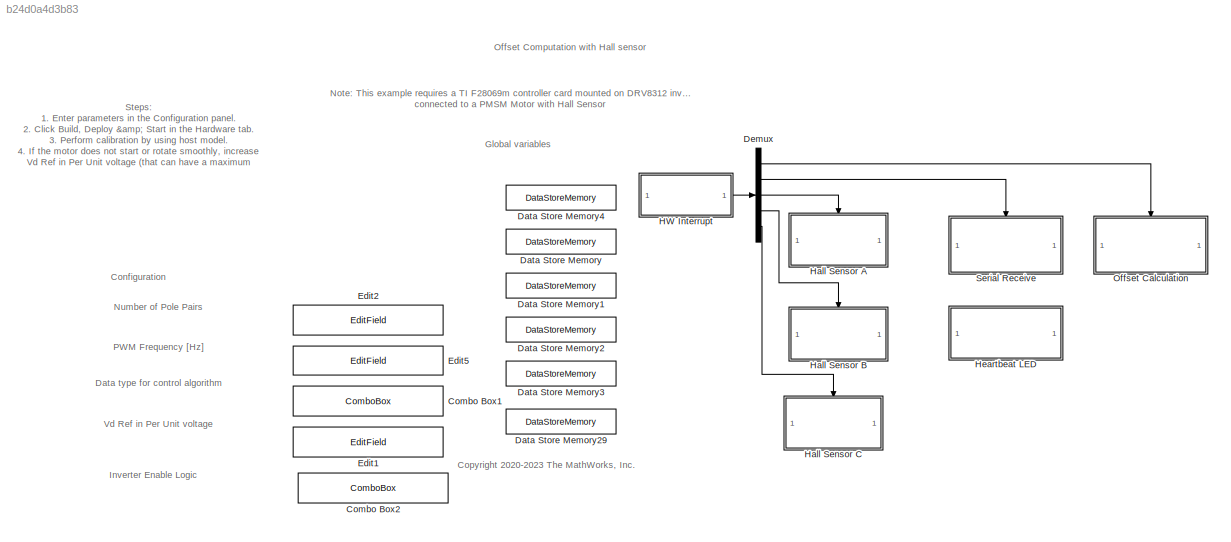
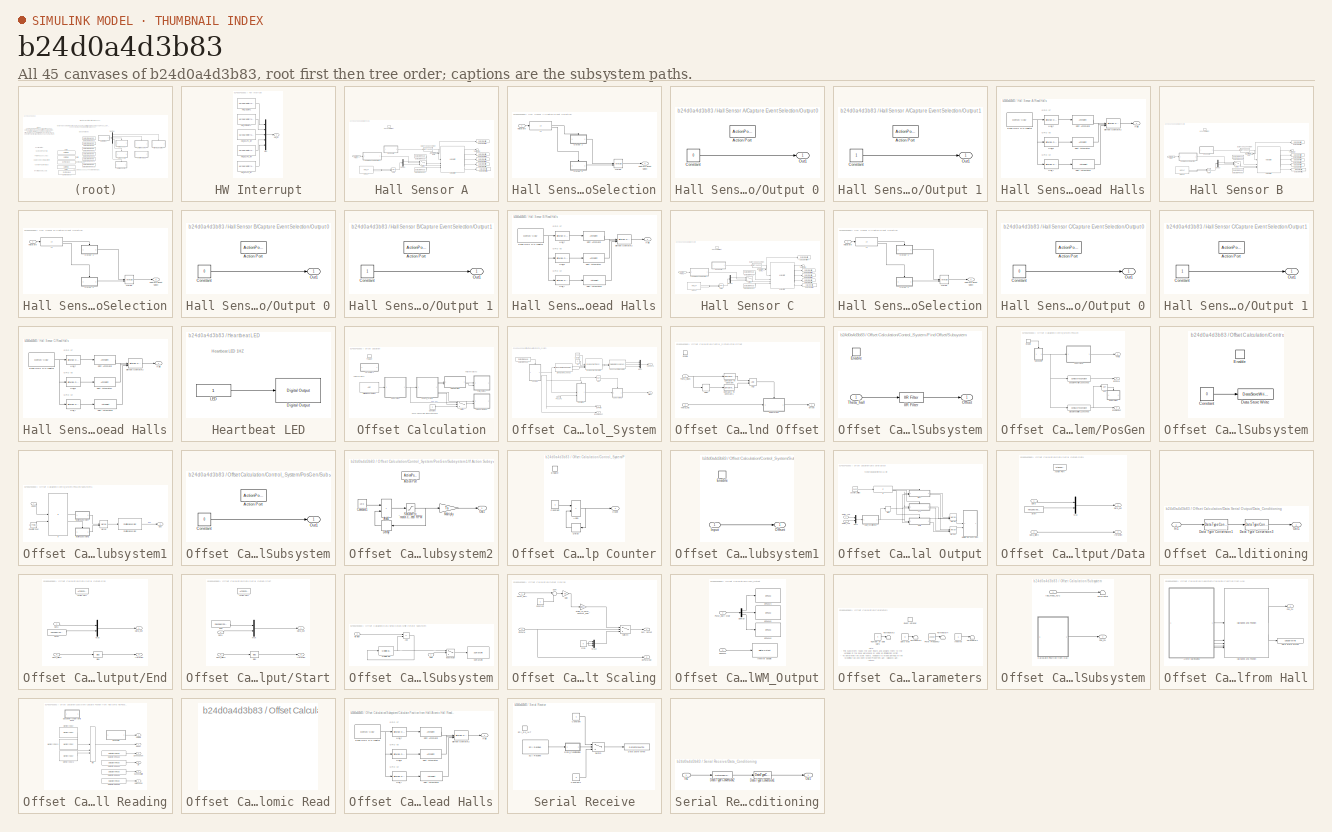
[diagram: thumbnail index - all 45 canvases of the model, root first then tree order]
MODEL slx_b24d0a4d3b83
KIND model
CONFIG AbsTol = auto
CONFIG EnableMultiTasking = on
CONFIG FixedStep = auto
CONFIG InitFcn = mcb_pmsm_offset_data;\ntarget = mcb_SetProcessorDetails('F28069M',PWM_frequency);\n\ninverter.EnableLogic = eval(get_param([bdroot '/Offset Calculation/Parameters/Inverter'],'Value'));
CONFIG MaxStep = auto
CONFIG MinStep = auto
CONFIG RelTol = 1e-3
CONFIG SampleTimeConstraint = Unconstrained
CONFIG SolverName = FixedStepDiscrete
CONFIG StartTime = 0.0
CONFIG StopTime = 2
BLOCK [ComboBox] Combo Box1
  LabelPosition = Hide
  SelectedLabel = single
BLOCK [ComboBox] Combo Box2
  LabelPosition = Hide
  SelectedLabel = Active High
BLOCK [DataStoreMemory] Data Store Memory
  DataStoreName = HallStateChangeFlag
  ShowAdditionalParam = off
BLOCK [DataStoreMemory] Data Store Memory1
  DataStoreName = GlobalSpeedCount
  ShowAdditionalParam = off
BLOCK [DataStoreMemory] Data Store Memory2
  DataStoreName = GlobalSpeedValidity
  ShowAdditionalParam = off
BLOCK [DataStoreMemory] Data Store Memory29
  DataStoreName = Enable
  OutDataTypeStr = boolean
  ReadBeforeWriteMsg = warning
  ShowAdditionalParam = off
  WriteAfterReadMsg = warning
  WriteAfterWriteMsg = warning
BLOCK [DataStoreMemory] Data Store Memory3
  DataStoreName = GlobalDirection
  ShowAdditionalParam = off
BLOCK [DataStoreMemory] Data Store Memory4
  DataStoreName = GlobalHallState
  OutDataTypeStr = uint32
  ShowAdditionalParam = off
BLOCK [Demux] Demux
  Outputs = 5
BLOCK [EditField] Edit1
  Alignment = Center
  LabelPosition = Hide
  ShowInitialText = on
BLOCK [EditField] Edit2
  Alignment = Center
  LabelPosition = Hide
  ShowInitialText = on
BLOCK [EditField] Edit5
  Alignment = Center
  LabelPosition = Hide
  ShowInitialText = on
BLOCK [SubSystem] HW Interrupt
BLOCK [Reference] HW Interrupt/HWI_ADCINT1  REF=svdschedulerlib/Hardware Interrupt v2
  LibrarySourceBlock = c2000lib/Scheduling/Hardware Interrupt
  SourceBlock = svdschedulerlib/Hardware Interrupt v2
  SourceType = HardwareInterrupt
  UserDataPersistent = on
BLOCK [Reference] HW Interrupt/HWI_ECAP1_INT  REF=svdschedulerlib/Hardware Interrupt v2
  LibrarySourceBlock = c2000lib/Scheduling/Hardware Interrupt
  SourceBlock = svdschedulerlib/Hardware Interrupt v2
  SourceType = HardwareInterrupt
  UserDataPersistent = on
BLOCK [Reference] HW Interrupt/HWI_ECAP2_INT  REF=svdschedulerlib/Hardware Interrupt v2
  LibrarySourceBlock = c2000lib/Scheduling/Hardware Interrupt
  SourceBlock = svdschedulerlib/Hardware Interrupt v2
  SourceType = HardwareInterrupt
  UserDataPersistent = on
BLOCK [Reference] HW Interrupt/HWI_ECAP3_INT  REF=svdschedulerlib/Hardware Interrupt v2
  LibrarySourceBlock = c2000lib/Scheduling/Hardware Interrupt
  SourceBlock = svdschedulerlib/Hardware Interrupt v2
  SourceType = HardwareInterrupt
  UserDataPersistent = on
BLOCK [Reference] HW Interrupt/HWI_SCIRXINTA  REF=svdschedulerlib/Hardware Interrupt v2
  LibrarySourceBlock = c2000lib/Scheduling/Hardware Interrupt
  SourceBlock = svdschedulerlib/Hardware Interrupt v2
  SourceType = HardwareInterrupt
  UserDataPersistent = on
BLOCK [Outport] HW Interrupt/HW_Int
BLOCK [Mux] HW Interrupt/Mux
  DisplayOption = bar
  Inputs = 5
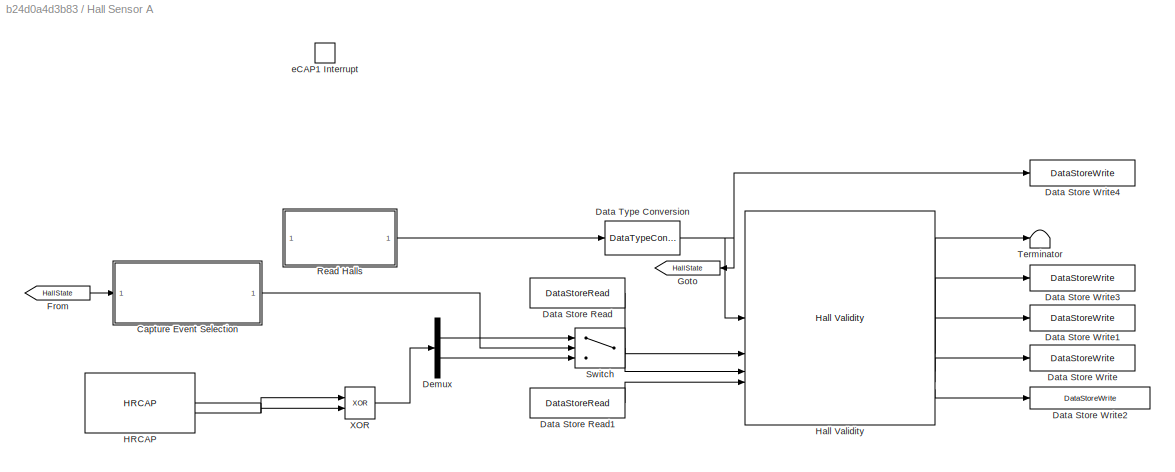
BLOCK [SubSystem] Hall Sensor A
BLOCK [SubSystem] Hall Sensor A/Capture Event Selection
BLOCK [Outport] Hall Sensor A/Capture Event Selection/Capture Event Select
BLOCK [Inport] Hall Sensor A/Capture Event Selection/Hall State
BLOCK [If] Hall Sensor A/Capture Event Selection/If
  IfExpression = (u1 == 5 | u1 == 3)
BLOCK [Merge] Hall Sensor A/Capture Event Selection/Merge
BLOCK [SubSystem] Hall Sensor A/Capture Event Selection/Output 0
  TreatAsAtomicUnit = on
BLOCK [ActionPort] Hall Sensor A/Capture Event Selection/Output 0/Action Port
  ActionPortLabel = else
BLOCK [Constant] Hall Sensor A/Capture Event Selection/Output 0/Constant
  OutDataTypeStr = boolean
  Value = 0
BLOCK [Outport] Hall Sensor A/Capture Event Selection/Output 0/Out1
BLOCK [SubSystem] Hall Sensor A/Capture Event Selection/Output 1
  TreatAsAtomicUnit = on
BLOCK [ActionPort] Hall Sensor A/Capture Event Selection/Output 1/Action Port
  ActionPortLabel = if((u1 == 5 | u1 == 3))
BLOCK [Constant] Hall Sensor A/Capture Event Selection/Output 1/Constant
  OutDataTypeStr = boolean
BLOCK [Outport] Hall Sensor A/Capture Event Selection/Output 1/Out1
BLOCK [DataStoreRead] Hall Sensor A/Data Store Read
  DataStoreName = GlobalHallState
  IndexOptions = Index vector (dialog)
  Indices = 1
  OutputSizes = 1
BLOCK [DataStoreRead] Hall Sensor A/Data Store Read1
  DataStoreName = GlobalDirection
  IndexOptions = Index vector (dialog)
  Indices = 1
  OutputSizes = 1
BLOCK [DataStoreWrite] Hall Sensor A/Data Store Write
  DataStoreName = GlobalSpeedValidity
  IndexOptions = Index vector (dialog)
  Indices = 1
  OutputSizes = 1
BLOCK [DataStoreWrite] Hall Sensor A/Data Store Write1
  DataStoreName = GlobalDirection
  IndexOptions = Index vector (dialog)
  Indices = 1
  OutputSizes = 1
BLOCK [DataStoreWrite] Hall Sensor A/Data Store Write2
  DataStoreName = HallStateChangeFlag
  IndexOptions = Index vector (dialog)
  Indices = 1
  OutputSizes = 1
BLOCK [DataStoreWrite] Hall Sensor A/Data Store Write3
  DataStoreName = GlobalSpeedCount
  IndexOptions = Index vector (dialog)
  Indices = 1
  OutputSizes = 1
BLOCK [DataStoreWrite] Hall Sensor A/Data Store Write4
  DataStoreName = GlobalHallState
  IndexOptions = Index vector (dialog)
  Indices = 1
  OutputSizes = 1
BLOCK [DataTypeConversion] Hall Sensor A/Data Type Conversion
  ConvertRealWorld = Stored Integer (SI)
  OutDataTypeStr = uint32
  RndMeth = Floor
  SaturateOnIntegerOverflow = off
BLOCK [Demux] Hall Sensor A/Demux
  Outputs = 2
BLOCK [From] Hall Sensor A/From
  GotoTag = HallState
BLOCK [Goto] Hall Sensor A/Goto
  GotoTag = HallState
BLOCK [Reference] Hall Sensor A/HRCAP  REF=c2803xlib/HRCAP
  SourceBlock = c2803xlib/HRCAP
  SourceType = codertarget.tic2000.blocks.HRCAPBlock
BLOCK [Reference] Hall Sensor A/Hall Validity  REF=mcbpositiondecoderlib/Hall Validity
  SourceBlock = mcbpositiondecoderlib/Hall Validity
  SourceType = Hall Validity
BLOCK [SubSystem] Hall Sensor A/Read Halls
BLOCK [Reference] Hall Sensor A/Read Halls/Bitwise Operator2  REF=simulink/Logic and Bit
Operations/Bitwise
Operator
  SourceBlock = simulink/Logic and Bit\nOperations/Bitwise\nOperator
  SourceType = Bitwise Operator
BLOCK [Reference] Hall Sensor A/Read Halls/Hall_A  REF=simulink/Logic and Bit
Operations/Bitwise
Operator
  SourceBlock = simulink/Logic and Bit\nOperations/Bitwise\nOperator
  SourceType = Bitwise Operator
BLOCK [Reference] Hall Sensor A/Read Halls/Hall_B  REF=simulink/Logic and Bit
Operations/Bitwise
Operator
  SourceBlock = simulink/Logic and Bit\nOperations/Bitwise\nOperator
  SourceType = Bitwise Operator
BLOCK [Reference] Hall Sensor A/Read Halls/Hall_C  REF=simulink/Logic and Bit
Operations/Bitwise
Operator
  SourceBlock = simulink/Logic and Bit\nOperations/Bitwise\nOperator
  SourceType = Bitwise Operator
BLOCK [Outport] Hall Sensor A/Read Halls/Halls
BLOCK [Reference] Hall Sensor A/Read Halls/Read GPIO DAT register  REF=idelinklib_common/Memory Copy
  SourceBlock = idelinklib_common/Memory Copy
  SourceType = Memory Copy
BLOCK [ArithShift] Hall Sensor A/Read Halls/Shift Arithmetic
  BitShiftNumber = 23
  InputPortMap = u0
BLOCK [ArithShift] Hall Sensor A/Read Halls/Shift Arithmetic1
  BitShiftNumber = 22
  InputPortMap = u0
BLOCK [ArithShift] Hall Sensor A/Read Halls/Shift Arithmetic2
  BitShiftNumber = 22
  InputPortMap = u0
BLOCK [Switch] Hall Sensor A/Switch
  Criteria = u2 ~= 0
  InputSameDT = off
  SaturateOnIntegerOverflow = off
BLOCK [Terminator] Hall Sensor A/Terminator
BLOCK [Logic] Hall Sensor A/XOR
  AllPortsSameDT = off
  IconShape = distinctive
  Operator = XOR
  OutDataTypeStr = boolean
BLOCK [TriggerPort] Hall Sensor A/eCAP1 Interrupt
  StatesWhenEnabling = held
  TriggerType = function-call
  VariantControl = Variant
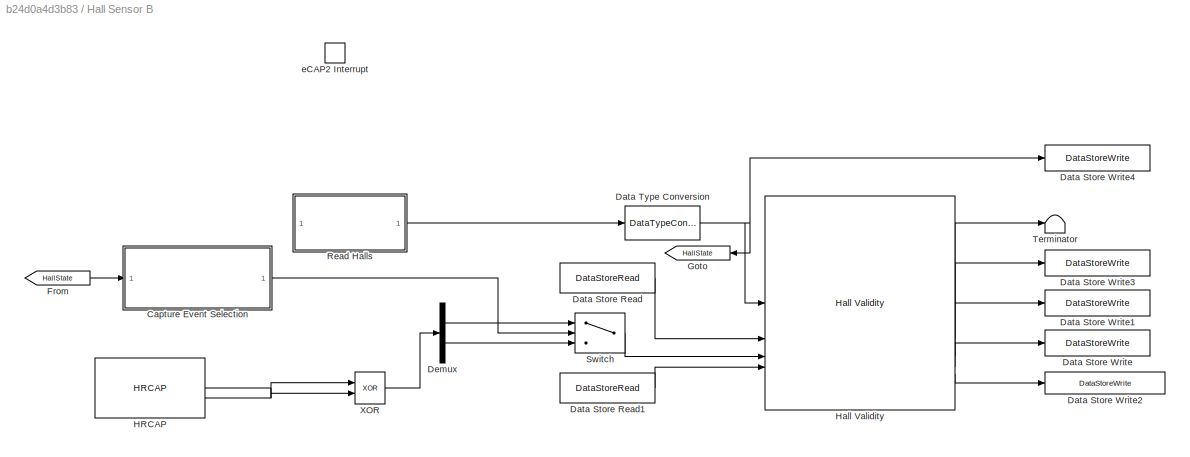
BLOCK [SubSystem] Hall Sensor B
BLOCK [SubSystem] Hall Sensor B/Capture Event Selection
BLOCK [Outport] Hall Sensor B/Capture Event Selection/Capture Event Select
BLOCK [Inport] Hall Sensor B/Capture Event Selection/Hall State
BLOCK [If] Hall Sensor B/Capture Event Selection/If
  IfExpression = (u1 == 6 | u1 == 3)
BLOCK [Merge] Hall Sensor B/Capture Event Selection/Merge
BLOCK [SubSystem] Hall Sensor B/Capture Event Selection/Output 0
  TreatAsAtomicUnit = on
BLOCK [ActionPort] Hall Sensor B/Capture Event Selection/Output 0/Action Port
  ActionPortLabel = else
BLOCK [Constant] Hall Sensor B/Capture Event Selection/Output 0/Constant
  OutDataTypeStr = boolean
  Value = 0
BLOCK [Outport] Hall Sensor B/Capture Event Selection/Output 0/Out1
BLOCK [SubSystem] Hall Sensor B/Capture Event Selection/Output 1
  TreatAsAtomicUnit = on
BLOCK [ActionPort] Hall Sensor B/Capture Event Selection/Output 1/Action Port
  ActionPortLabel = if((u1 == 6 | u1 == 3))
BLOCK [Constant] Hall Sensor B/Capture Event Selection/Output 1/Constant
  OutDataTypeStr = boolean
BLOCK [Outport] Hall Sensor B/Capture Event Selection/Output 1/Out1
BLOCK [DataStoreRead] Hall Sensor B/Data Store Read
  DataStoreName = GlobalHallState
  IndexOptions = Index vector (dialog)
  Indices = 1
  OutputSizes = 1
BLOCK [DataStoreRead] Hall Sensor B/Data Store Read1
  DataStoreName = GlobalDirection
  IndexOptions = Index vector (dialog)
  Indices = 1
  OutputSizes = 1
BLOCK [DataStoreWrite] Hall Sensor B/Data Store Write
  DataStoreName = GlobalSpeedValidity
  IndexOptions = Index vector (dialog)
  Indices = 1
  OutputSizes = 1
BLOCK [DataStoreWrite] Hall Sensor B/Data Store Write1
  DataStoreName = GlobalDirection
  IndexOptions = Index vector (dialog)
  Indices = 1
  OutputSizes = 1
BLOCK [DataStoreWrite] Hall Sensor B/Data Store Write2
  DataStoreName = HallStateChangeFlag
  IndexOptions = Index vector (dialog)
  Indices = 1
  OutputSizes = 1
BLOCK [DataStoreWrite] Hall Sensor B/Data Store Write3
  DataStoreName = GlobalSpeedCount
  IndexOptions = Index vector (dialog)
  Indices = 1
  OutputSizes = 1
BLOCK [DataStoreWrite] Hall Sensor B/Data Store Write4
  DataStoreName = GlobalHallState
  IndexOptions = Index vector (dialog)
  Indices = 1
  OutputSizes = 1
BLOCK [DataTypeConversion] Hall Sensor B/Data Type Conversion
  ConvertRealWorld = Stored Integer (SI)
  OutDataTypeStr = uint32
  RndMeth = Floor
  SaturateOnIntegerOverflow = off
BLOCK [Demux] Hall Sensor B/Demux
  Outputs = 2
BLOCK [From] Hall Sensor B/From
  GotoTag = HallState
BLOCK [Goto] Hall Sensor B/Goto
  GotoTag = HallState
BLOCK [Reference] Hall Sensor B/HRCAP  REF=c2803xlib/HRCAP
  SourceBlock = c2803xlib/HRCAP
  SourceType = codertarget.tic2000.blocks.HRCAPBlock
BLOCK [Reference] Hall Sensor B/Hall Validity  REF=mcbpositiondecoderlib/Hall Validity
  SourceBlock = mcbpositiondecoderlib/Hall Validity
  SourceType = Hall Validity
BLOCK [SubSystem] Hall Sensor B/Read Halls
BLOCK [Reference] Hall Sensor B/Read Halls/Bitwise Operator2  REF=simulink/Logic and Bit
Operations/Bitwise
Operator
  SourceBlock = simulink/Logic and Bit\nOperations/Bitwise\nOperator
  SourceType = Bitwise Operator
BLOCK [Reference] Hall Sensor B/Read Halls/Hall_A  REF=simulink/Logic and Bit
Operations/Bitwise
Operator
  SourceBlock = simulink/Logic and Bit\nOperations/Bitwise\nOperator
  SourceType = Bitwise Operator
BLOCK [Reference] Hall Sensor B/Read Halls/Hall_B  REF=simulink/Logic and Bit
Operations/Bitwise
Operator
  SourceBlock = simulink/Logic and Bit\nOperations/Bitwise\nOperator
  SourceType = Bitwise Operator
BLOCK [Reference] Hall Sensor B/Read Halls/Hall_C  REF=simulink/Logic and Bit
Operations/Bitwise
Operator
  SourceBlock = simulink/Logic and Bit\nOperations/Bitwise\nOperator
  SourceType = Bitwise Operator
BLOCK [Outport] Hall Sensor B/Read Halls/Halls
BLOCK [Reference] Hall Sensor B/Read Halls/Read GPIO DAT register  REF=idelinklib_common/Memory Copy
  SourceBlock = idelinklib_common/Memory Copy
  SourceType = Memory Copy
BLOCK [ArithShift] Hall Sensor B/Read Halls/Shift Arithmetic
  BitShiftNumber = 23
  InputPortMap = u0
BLOCK [ArithShift] Hall Sensor B/Read Halls/Shift Arithmetic1
  BitShiftNumber = 22
  InputPortMap = u0
BLOCK [ArithShift] Hall Sensor B/Read Halls/Shift Arithmetic2
  BitShiftNumber = 22
  InputPortMap = u0
BLOCK [Switch] Hall Sensor B/Switch
  Criteria = u2 ~= 0
  InputSameDT = off
  SaturateOnIntegerOverflow = off
  Threshold = 3
BLOCK [Terminator] Hall Sensor B/Terminator
BLOCK [Logic] Hall Sensor B/XOR
  AllPortsSameDT = off
  IconShape = distinctive
  Operator = XOR
  OutDataTypeStr = boolean
BLOCK [TriggerPort] Hall Sensor B/eCAP2 Interrupt
  StatesWhenEnabling = held
  TriggerType = function-call
  VariantControl = Variant
BLOCK [SubSystem] Hall Sensor C
BLOCK [SubSystem] Hall Sensor C/Capture Event Selection
BLOCK [Outport] Hall Sensor C/Capture Event Selection/Capture Event Select
BLOCK [Inport] Hall Sensor C/Capture Event Selection/Hall State
BLOCK [If] Hall Sensor C/Capture Event Selection/If
  IfExpression = (u1 == 6 | u1 == 5)
BLOCK [Merge] Hall Sensor C/Capture Event Selection/Merge
BLOCK [SubSystem] Hall Sensor C/Capture Event Selection/Output 0
  TreatAsAtomicUnit = on
BLOCK [ActionPort] Hall Sensor C/Capture Event Selection/Output 0/Action Port
  ActionPortLabel = else
BLOCK [Constant] Hall Sensor C/Capture Event Selection/Output 0/Constant
  OutDataTypeStr = boolean
  Value = 0
BLOCK [Outport] Hall Sensor C/Capture Event Selection/Output 0/Out1
BLOCK [SubSystem] Hall Sensor C/Capture Event Selection/Output 1
  TreatAsAtomicUnit = on
BLOCK [ActionPort] Hall Sensor C/Capture Event Selection/Output 1/Action Port
  ActionPortLabel = if((u1 == 6 | u1 == 5))
BLOCK [Constant] Hall Sensor C/Capture Event Selection/Output 1/Constant
  OutDataTypeStr = boolean
BLOCK [Outport] Hall Sensor C/Capture Event Selection/Output 1/Out1
BLOCK [DataStoreRead] Hall Sensor C/Data Store Read
  DataStoreName = GlobalHallState
  IndexOptions = Index vector (dialog)
  Indices = 1
  OutputSizes = 1
BLOCK [DataStoreRead] Hall Sensor C/Data Store Read1
  DataStoreName = GlobalDirection
  IndexOptions = Index vector (dialog)
  Indices = 1
  OutputSizes = 1
BLOCK [DataStoreWrite] Hall Sensor C/Data Store Write
  DataStoreName = GlobalSpeedValidity
  IndexOptions = Index vector (dialog)
  Indices = 1
  OutputSizes = 1
BLOCK [DataStoreWrite] Hall Sensor C/Data Store Write1
  DataStoreName = GlobalDirection
  IndexOptions = Index vector (dialog)
  Indices = 1
  OutputSizes = 1
BLOCK [DataStoreWrite] Hall Sensor C/Data Store Write2
  DataStoreName = HallStateChangeFlag
  IndexOptions = Index vector (dialog)
  Indices = 1
  OutputSizes = 1
BLOCK [DataStoreWrite] Hall Sensor C/Data Store Write3
  DataStoreName = GlobalSpeedCount
  IndexOptions = Index vector (dialog)
  Indices = 1
  OutputSizes = 1
BLOCK [DataStoreWrite] Hall Sensor C/Data Store Write4
  DataStoreName = GlobalHallState
  IndexOptions = Index vector (dialog)
  Indices = 1
  OutputSizes = 1
BLOCK [DataTypeConversion] Hall Sensor C/Data Type Conversion
  ConvertRealWorld = Stored Integer (SI)
  OutDataTypeStr = uint32
  RndMeth = Floor
  SaturateOnIntegerOverflow = off
BLOCK [Demux] Hall Sensor C/Demux
  Outputs = 2
BLOCK [From] Hall Sensor C/From1
  GotoTag = HallState
BLOCK [Goto] Hall Sensor C/Goto1
  GotoTag = HallState
BLOCK [Reference] Hall Sensor C/HRCAP  REF=c2803xlib/HRCAP
  SourceBlock = c2803xlib/HRCAP
  SourceType = codertarget.tic2000.blocks.HRCAPBlock
BLOCK [Reference] Hall Sensor C/Hall Validity  REF=mcbpositiondecoderlib/Hall Validity
  SourceBlock = mcbpositiondecoderlib/Hall Validity
  SourceType = Hall Validity
BLOCK [SubSystem] Hall Sensor C/Read Halls
BLOCK [Reference] Hall Sensor C/Read Halls/Bitwise Operator2  REF=simulink/Logic and Bit
Operations/Bitwise
Operator
  SourceBlock = simulink/Logic and Bit\nOperations/Bitwise\nOperator
  SourceType = Bitwise Operator
BLOCK [Reference] Hall Sensor C/Read Halls/Hall_A  REF=simulink/Logic and Bit
Operations/Bitwise
Operator
  SourceBlock = simulink/Logic and Bit\nOperations/Bitwise\nOperator
  SourceType = Bitwise Operator
BLOCK [Reference] Hall Sensor C/Read Halls/Hall_B  REF=simulink/Logic and Bit
Operations/Bitwise
Operator
  SourceBlock = simulink/Logic and Bit\nOperations/Bitwise\nOperator
  SourceType = Bitwise Operator
BLOCK [Reference] Hall Sensor C/Read Halls/Hall_C  REF=simulink/Logic and Bit
Operations/Bitwise
Operator
  SourceBlock = simulink/Logic and Bit\nOperations/Bitwise\nOperator
  SourceType = Bitwise Operator
BLOCK [Outport] Hall Sensor C/Read Halls/Halls
BLOCK [Reference] Hall Sensor C/Read Halls/Read GPIO DAT register  REF=idelinklib_common/Memory Copy
  SourceBlock = idelinklib_common/Memory Copy
  SourceType = Memory Copy
BLOCK [ArithShift] Hall Sensor C/Read Halls/Shift Arithmetic
  BitShiftNumber = 23
  InputPortMap = u0
BLOCK [ArithShift] Hall Sensor C/Read Halls/Shift Arithmetic1
  BitShiftNumber = 22
  InputPortMap = u0
BLOCK [ArithShift] Hall Sensor C/Read Halls/Shift Arithmetic2
  BitShiftNumber = 22
  InputPortMap = u0
BLOCK [Switch] Hall Sensor C/Switch
  Criteria = u2 ~= 0
  InputSameDT = off
  SaturateOnIntegerOverflow = off
  Threshold = 3
BLOCK [Terminator] Hall Sensor C/Terminator
BLOCK [Logic] Hall Sensor C/XOR
  AllPortsSameDT = off
  IconShape = distinctive
  Operator = XOR
  OutDataTypeStr = boolean
BLOCK [TriggerPort] Hall Sensor C/eCAP3 Interrupt
  StatesWhenEnabling = held
  TriggerType = function-call
  VariantControl = Variant
BLOCK [SubSystem] Heartbeat LED
  TreatAsAtomicUnit = on
BLOCK [Reference] Heartbeat LED/Digital Output  REF=c2806xlib/Digital Output
  SourceBlock = c2806xlib/Digital Output
  SourceType = C2806x GPIO Digital Output
  UserDataPersistent = on
BLOCK [Constant] Heartbeat LED/LED
  OutDataTypeStr = uint16
  SampleTime = 0.5
BLOCK [SubSystem] Offset Calculation
  RTWMemSecFuncExecute = code_ramfuncs
BLOCK [Constant] Offset Calculation/Constant
  OutDataTypeStr = dataType
  Value = -1
BLOCK [SubSystem] Offset Calculation/Control_System
BLOCK [DataStoreRead] Offset Calculation/Control_System/Data Store Read
  DataStoreName = Enable
  IndexOptions = Index vector (dialog)
  Indices = 1
  OutputSizes = 1
BLOCK [Outport] Offset Calculation/Control_System/EnPWM
  Port = 2
  VectorParamsAs1DForOutWhenUnconnected = off
BLOCK [Outport] Offset Calculation/Control_System/EnableHost
  Port = 4
  VectorParamsAs1DForOutWhenUnconnected = off
BLOCK [SubSystem] Offset Calculation/Control_System/Find Offset
BLOCK [Logic] Offset Calculation/Control_System/Find Offset/AND
  AllPortsSameDT = off
  OutDataTypeStr = boolean
BLOCK [Reference] Offset Calculation/Control_System/Find Offset/Compare To Constant  REF=simulink/Logic and Bit
Operations/Compare
To Constant
  SourceBlock = simulink/Logic and Bit\nOperations/Compare\nTo Constant
  SourceType = Compare To Constant
BLOCK [Reference] Offset Calculation/Control_System/Find Offset/Compare To Constant1  REF=simulink/Logic and Bit
Operations/Compare
To Constant
  SourceBlock = simulink/Logic and Bit\nOperations/Compare\nTo Constant
  SourceType = Compare To Constant
BLOCK [Delay] Offset Calculation/Control_System/Find Offset/Delay
  DelayLength = 1
  InputPortMap = u0
BLOCK [EnablePort] Offset Calculation/Control_System/Find Offset/Enable
  StatesWhenEnabling = reset
BLOCK [Outport] Offset Calculation/Control_System/Find Offset/Offset
BLOCK [SubSystem] Offset Calculation/Control_System/Find Offset/Subsystem
BLOCK [EnablePort] Offset Calculation/Control_System/Find Offset/Subsystem/Enable
BLOCK [Reference] Offset Calculation/Control_System/Find Offset/Subsystem/IIR Filter  REF=mcbcontrolslib/IIR Filter
  SourceBlock = mcbcontrolslib/IIR Filter
  SourceType = IIR Filter
BLOCK [Outport] Offset Calculation/Control_System/Find Offset/Subsystem/Offset
BLOCK [Inport] Offset Calculation/Control_System/Find Offset/Subsystem/Theta_hall
BLOCK [Inport] Offset Calculation/Control_System/Find Offset/Theta_Open
BLOCK [Inport] Offset Calculation/Control_System/Find Offset/Theta_hall
  Port = 2
BLOCK [Reference] Offset Calculation/Control_System/Inverse Park Transform  REF=mcbcontrolslib/Inverse Park Transform
  SourceBlock = mcbcontrolslib/Inverse Park Transform
  SourceType = Inverse Park Transform
BLOCK [Mux] Offset Calculation/Control_System/Mux1
  DisplayOption = bar
  Inputs = 3
BLOCK [Logic] Offset Calculation/Control_System/NOT
  AllPortsSameDT = off
  IconShape = distinctive
  Operator = NOT
  OutDataTypeStr = boolean
BLOCK [Outport] Offset Calculation/Control_System/Offset
  Port = 3
  VectorParamsAs1DForOutWhenUnconnected = off
BLOCK [SubSystem] Offset Calculation/Control_System/PosGen
BLOCK [Reference] Offset Calculation/Control_System/PosGen/Disable host after 22 seconds  REF=simulink/Logic and Bit
Operations/Compare
To Constant
  SourceBlock = simulink/Logic and Bit\nOperations/Compare\nTo Constant
  SourceType = Compare To Constant
BLOCK [Outport] Offset Calculation/Control_System/PosGen/EnPWM
  InitialOutput = 0
  OutputWhenDisabled = reset
  Port = 2
  VectorParamsAs1DForOutWhenUnconnected = off
BLOCK [EnablePort] Offset Calculation/Control_System/PosGen/Enable
  ShowOutputPort = on
  StatesWhenEnabling = reset
BLOCK [Reference] Offset Calculation/Control_System/PosGen/Enable PWM for 20 seconds  REF=simulink/Logic and Bit
Operations/Compare
To Constant
  SourceBlock = simulink/Logic and Bit\nOperations/Compare\nTo Constant
  SourceType = Compare To Constant
BLOCK [Outport] Offset Calculation/Control_System/PosGen/EnableHost
  InitialOutput = 0
  OutputWhenDisabled = reset
  Port = 3
  VectorParamsAs1DForOutWhenUnconnected = off
BLOCK [Logic] Offset Calculation/Control_System/PosGen/NOT
  AllPortsSameDT = off
  IconShape = distinctive
  Operator = NOT
  OutDataTypeStr = boolean
BLOCK [SubSystem] Offset Calculation/Control_System/PosGen/Subsystem
BLOCK [Constant] Offset Calculation/Control_System/PosGen/Subsystem/Constant
  OutDataTypeStr = Inherit: Inherit via back propagation
  Value = 0
BLOCK [DataStoreWrite] Offset Calculation/Control_System/PosGen/Subsystem/Data Store Write
  DataStoreName = Enable
  IndexOptions = Index vector (dialog)
  Indices = 1
  OutputSizes = 1
BLOCK [EnablePort] Offset Calculation/Control_System/PosGen/Subsystem/Enable
BLOCK [SubSystem] Offset Calculation/Control_System/PosGen/Subsystem1
BLOCK [Inport] Offset Calculation/Control_System/PosGen/Subsystem1/Count
BLOCK [Constant] Offset Calculation/Control_System/PosGen/Subsystem1/Count for 2 sec
  OutDataTypeStr = uint32
  SampleTime = -1
  Value = 2.5 * PWM_frequency
BLOCK [Outport] Offset Calculation/Control_System/PosGen/Subsystem1/Eps
BLOCK [If] Offset Calculation/Control_System/PosGen/Subsystem1/If
  IfExpression = u1 < u2
  NumInputs = 2
BLOCK [SubSystem] Offset Calculation/Control_System/PosGen/Subsystem1/If Action Subsystem
  TreatAsAtomicUnit = on
BLOCK [ActionPort] Offset Calculation/Control_System/PosGen/Subsystem1/If Action Subsystem/Action Port
  ActionPortLabel = if(u1 < u2)
BLOCK [Constant] Offset Calculation/Control_System/PosGen/Subsystem1/If Action Subsystem/Constant
  OutDataTypeStr = dataType
  Value = 0
BLOCK [Outport] Offset Calculation/Control_System/PosGen/Subsystem1/If Action Subsystem/Out1
BLOCK [SubSystem] Offset Calculation/Control_System/PosGen/Subsystem1/If Action Subsystem2
  TreatAsAtomicUnit = on
BLOCK [ActionPort] Offset Calculation/Control_System/PosGen/Subsystem1/If Action Subsystem2/Action Port
  ActionPortLabel = else
BLOCK [Sum] Offset Calculation/Control_System/PosGen/Subsystem1/If Action Subsystem2/Add1
  IconShape = rectangular
BLOCK [Constant] Offset Calculation/Control_System/PosGen/Subsystem1/If Action Subsystem2/Constant1
  OutDataTypeStr = dataType
  Value = 1e-3
BLOCK [Delay] Offset Calculation/Control_System/PosGen/Subsystem1/If Action Subsystem2/Delay
  DelayLength = 1
  InputPortMap = u0
BLOCK [Gain] Offset Calculation/Control_System/PosGen/Subsystem1/If Action Subsystem2/Multiply
  Gain = Ts
  OutDataTypeStr = Inherit: Same as input
BLOCK [Outport] Offset Calculation/Control_System/PosGen/Subsystem1/If Action Subsystem2/Out1
BLOCK [Saturate] Offset Calculation/Control_System/PosGen/Subsystem1/If Action Subsystem2/Saturate to 'motor.calibSpeed' RPM
  LowerLimit = 0
  UpperLimit = motor.polePairs * motor.calibSpeed / 60
BLOCK [Merge] Offset Calculation/Control_System/PosGen/Subsystem1/Merge
BLOCK [Reference] Offset Calculation/Control_System/PosGen/Subsystem1/Position Generator  REF=mcbcontrolslib/Position Generator
  SourceBlock = mcbcontrolslib/Position Generator
  SourceType = Position Generator
BLOCK [Outport] Offset Calculation/Control_System/PosGen/Theta
BLOCK [SubSystem] Offset Calculation/Control_System/PosGen/Up Counter
BLOCK [Sum] Offset Calculation/Control_System/PosGen/Up Counter/Add1
  IconShape = rectangular
  SaturateOnIntegerOverflow = on
BLOCK [Constant] Offset Calculation/Control_System/PosGen/Up Counter/Constant
  OutDataTypeStr = uint32
BLOCK [Outport] Offset Calculation/Control_System/PosGen/Up Counter/Count
  InitialOutput = 0
  OutputWhenDisabled = reset
BLOCK [Delay] Offset Calculation/Control_System/PosGen/Up Counter/Delay
  DelayLength = 1
  InputPortMap = u0
BLOCK [EnablePort] Offset Calculation/Control_System/PosGen/Up Counter/Enable
  StatesWhenEnabling = reset
BLOCK [Inport] Offset Calculation/Control_System/Pos_PU
BLOCK [Reference] Offset Calculation/Control_System/Sine-Cosine Lookup  REF=mcbcontrolslib/SinCos Embedded Optimized
  SourceBlock = mcbcontrolslib/SinCos Embedded Optimized
  SourceType = SinCos Embedded Optimized
BLOCK [Reference] Offset Calculation/Control_System/Space Vector Generator  REF=mcbcontrolslib/PWM Reference Generator
  SourceBlock = mcbcontrolslib/PWM Reference Generator
  SourceType = PWM Modulation
BLOCK [SubSystem] Offset Calculation/Control_System/Subsystem1
BLOCK [EnablePort] Offset Calculation/Control_System/Subsystem1/Enable
BLOCK [Inport] Offset Calculation/Control_System/Subsystem1/Input
BLOCK [Outport] Offset Calculation/Control_System/Subsystem1/Offset
BLOCK [Outport] Offset Calculation/Control_System/Vabc in PU
  VectorParamsAs1DForOutWhenUnconnected = off
BLOCK [Constant] Offset Calculation/Control_System/Vd_Ref
  OutDataTypeStr = dataType
  OutMax = 1
  OutMin = 0
  SampleTime = -1
  Value = 0.15
BLOCK [Constant] Offset Calculation/Control_System/Vq
  OutDataTypeStr = dataType
  SampleTime = -1
  Value = 0
BLOCK [SubSystem] Offset Calculation/Data Serial Output
BLOCK [Reference] Offset Calculation/Data Serial Output/Counter Limited  REF=simulink/Sources/Counter
Limited
  SourceBlock = simulink/Sources/Counter\nLimited
  SourceType = Counter Limited
BLOCK [SubSystem] Offset Calculation/Data Serial Output/Data
  TreatAsAtomicUnit = on
BLOCK [ActionPort] Offset Calculation/Data Serial Output/Data/Action Port
  ActionPortLabel = else
BLOCK [Inport] Offset Calculation/Data Serial Output/Data/Data
BLOCK [Outport] Offset Calculation/Data Serial Output/Data/Data_out
  VectorParamsAs1DForOutWhenUnconnected = off
BLOCK [Inport] Offset Calculation/Data Serial Output/Data/Data_width
  Port = 2
BLOCK [Outport] Offset Calculation/Data Serial Output/Data/Iteration
  Port = 2
  VectorParamsAs1DForOutWhenUnconnected = off
BLOCK [Mux] Offset Calculation/Data Serial Output/Data/Mux
  DisplayOption = bar
  Inputs = 2
BLOCK [Constant] Offset Calculation/Data Serial Output/Data/Start
  OutDataTypeStr = uint16
  Value = hex2dec('0000')
BLOCK [Inport] Offset Calculation/Data Serial Output/Data1_Log
  Port = 2
BLOCK [Inport] Offset Calculation/Data Serial Output/Data2_Log
BLOCK [SubSystem] Offset Calculation/Data Serial Output/Data_Conditioning
BLOCK [DataTypeConversion] Offset Calculation/Data Serial Output/Data_Conditioning/Data Type Conversion1
  OutDataTypeStr = fixdt(1,32,12)
  RndMeth = Simplest
  SaturateOnIntegerOverflow = off
BLOCK [DataTypeConversion] Offset Calculation/Data Serial Output/Data_Conditioning/Data Type Conversion3
  ConvertRealWorld = Stored Integer (SI)
  OutDataTypeStr = uint16
  RndMeth = Floor
  SaturateOnIntegerOverflow = off
BLOCK [Inport] Offset Calculation/Data Serial Output/Data_Conditioning/In1
BLOCK [Outport] Offset Calculation/Data Serial Output/Data_Conditioning/Out1
BLOCK [SubSystem] Offset Calculation/Data Serial Output/End
  TreatAsAtomicUnit = on
BLOCK [ActionPort] Offset Calculation/Data Serial Output/End/Action Port
  ActionPortLabel = elseif(u1 == 599)
BLOCK [Bias] Offset Calculation/Data Serial Output/End/Bias
  Bias = 1
  SaturateOnIntegerOverflow = off
BLOCK [Inport] Offset Calculation/Data Serial Output/End/Data
BLOCK [Outport] Offset Calculation/Data Serial Output/End/Data_out
  VectorParamsAs1DForOutWhenUnconnected = off
BLOCK [Inport] Offset Calculation/Data Serial Output/End/Data_width
  Port = 2
BLOCK [Outport] Offset Calculation/Data Serial Output/End/Iteration
  Port = 2
  VectorParamsAs1DForOutWhenUnconnected = off
BLOCK [Mux] Offset Calculation/Data Serial Output/End/Mux
  DisplayOption = bar
  Inputs = 2
BLOCK [Constant] Offset Calculation/Data Serial Output/End/Start
  OutDataTypeStr = uint16
  Value = hex2dec('4545')
BLOCK [If] Offset Calculation/Data Serial Output/If
  ElseIfExpressions = u1 == 599
  IfExpression = u1 == 0
BLOCK [Merge] Offset Calculation/Data Serial Output/Merge
  Inputs = 3
BLOCK [Merge] Offset Calculation/Data Serial Output/Merge1
  Inputs = 3
BLOCK [Mux] Offset Calculation/Data Serial Output/Mux3
  DisplayOption = bar
  Inputs = 2
BLOCK [SubSystem] Offset Calculation/Data Serial Output/Start
  TreatAsAtomicUnit = on
BLOCK [ActionPort] Offset Calculation/Data Serial Output/Start/Action Port
  ActionPortLabel = if(u1 == 0)
BLOCK [Bias] Offset Calculation/Data Serial Output/Start/Bias
  Bias = 1
  SaturateOnIntegerOverflow = off
BLOCK [Inport] Offset Calculation/Data Serial Output/Start/Data
BLOCK [Outport] Offset Calculation/Data Serial Output/Start/Data_out
  VectorParamsAs1DForOutWhenUnconnected = off
BLOCK [Inport] Offset Calculation/Data Serial Output/Start/Data_width
  Port = 2
BLOCK [Constant] Offset Calculation/Data Serial Output/Start/End
  OutDataTypeStr = uint16
  Value = hex2dec('5353')
BLOCK [Outport] Offset Calculation/Data Serial Output/Start/Iteration
  Port = 2
  VectorParamsAs1DForOutWhenUnconnected = off
BLOCK [Mux] Offset Calculation/Data Serial Output/Start/Mux
  DisplayOption = bar
  Inputs = 2
BLOCK [SubSystem] Offset Calculation/Data Serial Output/While Iterator Subsystem
  TreatAsAtomicUnit = on
BLOCK [Sum] Offset Calculation/Data Serial Output/While Iterator Subsystem/Add
  IconShape = rectangular
  Inputs = +-
  OutDataTypeStr = Inherit: Same as first input
BLOCK [Inport] Offset Calculation/Data Serial Output/While Iterator Subsystem/Data
BLOCK [MultiPortSwitch] Offset Calculation/Data Serial Output/While Iterator Subsystem/Index Vector
  InputSameDT = off
  Inputs = 1
  SaturateOnIntegerOverflow = off
BLOCK [Inport] Offset Calculation/Data Serial Output/While Iterator Subsystem/Iteration
  Port = 2
BLOCK [Reference] Offset Calculation/Data Serial Output/While Iterator Subsystem/SCI Transmit  REF=c280xlib/SCI Transmit
  SourceBlock = c280xlib/SCI Transmit
  SourceType = C28x SCI Transmit
BLOCK [WhileIterator] Offset Calculation/Data Serial Output/While Iterator Subsystem/While Iterator
  MaxIters = -1
  OutputDataType = int16
  ShowIterationPort = on
  WhileBlockType = do-while
BLOCK [Width] Offset Calculation/Data Serial Output/Width
  DataType = uint16
  OutDataTypeMode = All ports same datatype
BLOCK [Reference] Offset Calculation/IA//IB Measurement  REF=c2802xlib/ADC
  SourceBlock = c2802xlib/ADC
  SourceType = ADC Type 3-5
  UserDataPersistent = on
BLOCK [SubSystem] Offset Calculation/Output Scaling
BLOCK [Constant] Offset Calculation/Output Scaling/Constant
  OutDataTypeStr = dataType
BLOCK [Outport] Offset Calculation/Output Scaling/Duty Output
BLOCK [Inport] Offset Calculation/Output Scaling/EnPWM
  Port = 2
BLOCK [Outport] Offset Calculation/Output Scaling/EnPWMOut
  Port = 2
  VectorParamsAs1DForOutWhenUnconnected = off
BLOCK [Gain] Offset Calculation/Output Scaling/Gain
  Gain = 0.5
  OutDataTypeStr = Inherit: Same as input
  RndMeth = Simplest
BLOCK [Mux] Offset Calculation/Output Scaling/Mux2
  DisplayOption = bar
  Inputs = 3
BLOCK [Inport] Offset Calculation/Output Scaling/PWM_Duty
BLOCK [Gain] Offset Calculation/Output Scaling/Scale_to_PWM_Counter_PRD
  Gain = target.PWM_Counter_Period
  OutDataTypeStr = uint16
  RndMeth = Simplest
BLOCK [Sum] Offset Calculation/Output Scaling/Sum
  AccumDataTypeStr = Inherit: Same as first input
  Inputs = |++
  OutDataTypeStr = Inherit: Same as first input
  RndMeth = Simplest
BLOCK [Switch] Offset Calculation/Output Scaling/Switch4
  InputSameDT = off
  SaturateOnIntegerOverflow = off
  Threshold = 0.5
BLOCK [Constant] Offset Calculation/Output Scaling/stop
  OutDataTypeStr = uint16
  Value = 0
BLOCK [SubSystem] Offset Calculation/PWM_Output
BLOCK [Demux] Offset Calculation/PWM_Output/Demux
  Outputs = 3
BLOCK [Inport] Offset Calculation/PWM_Output/EnPWM
  Port = 2
BLOCK [Reference] Offset Calculation/PWM_Output/Inverter Enable  REF=c2806xlib/Digital Output
  SourceBlock = c2806xlib/Digital Output
  SourceType = C2806x GPIO Digital Output
  UserDataPersistent = on
BLOCK [Inport] Offset Calculation/PWM_Output/PWM_Duty Cycle
BLOCK [Reference] Offset Calculation/PWM_Output/ePWM4  REF=c2802xlib/ePWM
  SourceBlock = c2802xlib/ePWM
  SourceType = ePWM Type 1-4
BLOCK [Reference] Offset Calculation/PWM_Output/ePWM5  REF=c2802xlib/ePWM
  SourceBlock = c2802xlib/ePWM
  SourceType = ePWM Type 1-4
BLOCK [Reference] Offset Calculation/PWM_Output/ePWM6  REF=c2802xlib/ePWM
  SourceBlock = c2802xlib/ePWM
  SourceType = ePWM Type 1-4
BLOCK [SubSystem] Offset Calculation/Parameters
  TreatAsAtomicUnit = on
BLOCK [Constant] Offset Calculation/Parameters/Data Type
  Value = 0
BLOCK [EventListener] Offset Calculation/Parameters/Event Listener
  DisableCoverage = on
  EventName = reset
BLOCK [Constant] Offset Calculation/Parameters/Inverter
BLOCK [Constant] Offset Calculation/Parameters/Number of pole pairs
  Value = 4
BLOCK [Constant] Offset Calculation/Parameters/PWM Frequency
  Value = 20000
BLOCK [Terminator] Offset Calculation/Parameters/Terminator1
BLOCK [Terminator] Offset Calculation/Parameters/Terminator2
BLOCK [Terminator] Offset Calculation/Parameters/Terminator3
BLOCK [Terminator] Offset Calculation/Parameters/Terminator4
BLOCK [SubSystem] Offset Calculation/Subsystem
BLOCK [SubSystem] Offset Calculation/Subsystem/Calculate Position from Hall
BLOCK [SubSystem] Offset Calculation/Subsystem/Calculate Position from Hall/Atomic Hall Reading
  RTWSystemCode = Nonreusable function
  TreatAsAtomicUnit = on
BLOCK [Outport] Offset Calculation/Subsystem/Calculate Position from Hall/Atomic Hall Reading/Count
  Port = 2
BLOCK [DataStoreRead] Offset Calculation/Subsystem/Calculate Position from Hall/Atomic Hall Reading/Data Store Read2
  DataStoreName = GlobalSpeedCount
  IndexOptions = Index vector (dialog)
  Indices = 1
  OutputSizes = 1
BLOCK [DataStoreRead] Offset Calculation/Subsystem/Calculate Position from Hall/Atomic Hall Reading/Data Store Read3
  DataStoreName = GlobalDirection
  IndexOptions = Index vector (dialog)
  Indices = 1
  OutputSizes = 1
BLOCK [DataStoreRead] Offset Calculation/Subsystem/Calculate Position from Hall/Atomic Hall Reading/Data Store Read4
  DataStoreName = GlobalSpeedValidity
  IndexOptions = Index vector (dialog)
  Indices = 1
  OutputSizes = 1
BLOCK [DataStoreRead] Offset Calculation/Subsystem/Calculate Position from Hall/Atomic Hall Reading/Data Store Read5
  DataStoreName = HallStateChangeFlag
  IndexOptions = Index vector (dialog)
  Indices = 1
  OutputSizes = 1
  Priority = 1
BLOCK [Outport] Offset Calculation/Subsystem/Calculate Position from Hall/Atomic Hall Reading/Dir
  Port = 4
BLOCK [SubSystem] Offset Calculation/Subsystem/Calculate Position from Hall/Atomic Hall Reading/Disable Interrupts for Atomic Read
  CopyFcn = cccopyfcn(gcb)
  OpenFcn = ccopenfcn('System Outputs Function')
BLOCK [Outport] Offset Calculation/Subsystem/Calculate Position from Hall/Atomic Hall Reading/HallChange
  Port = 6
BLOCK [Outport] Offset Calculation/Subsystem/Calculate Position from Hall/Atomic Hall Reading/HallState
BLOCK [Reference] Offset Calculation/Subsystem/Calculate Position from Hall/Atomic Hall Reading/Memory Copy  REF=idelinklib_common/Memory Copy
  SourceBlock = idelinklib_common/Memory Copy
  SourceType = Memory Copy
BLOCK [Reference] Offset Calculation/Subsystem/Calculate Position from Hall/Atomic Hall Reading/Memory Copy1  REF=idelinklib_common/Memory Copy
  SourceBlock = idelinklib_common/Memory Copy
  SourceType = Memory Copy
BLOCK [Reference] Offset Calculation/Subsystem/Calculate Position from Hall/Atomic Hall Reading/Memory Copy2  REF=idelinklib_common/Memory Copy
  SourceBlock = idelinklib_common/Memory Copy
  SourceType = Memory Copy
BLOCK [MinMax] Offset Calculation/Subsystem/Calculate Position from Hall/Atomic Hall Reading/Min
  Inputs = 3
BLOCK [SubSystem] Offset Calculation/Subsystem/Calculate Position from Hall/Atomic Hall Reading/Read Halls
BLOCK [Reference] Offset Calculation/Subsystem/Calculate Position from Hall/Atomic Hall Reading/Read Halls/Bitwise Operator2  REF=simulink/Logic and Bit
Operations/Bitwise
Operator
  SourceBlock = simulink/Logic and Bit\nOperations/Bitwise\nOperator
  SourceType = Bitwise Operator
BLOCK [Reference] Offset Calculation/Subsystem/Calculate Position from Hall/Atomic Hall Reading/Read Halls/Hall_A  REF=simulink/Logic and Bit
Operations/Bitwise
Operator
  SourceBlock = simulink/Logic and Bit\nOperations/Bitwise\nOperator
  SourceType = Bitwise Operator
BLOCK [Reference] Offset Calculation/Subsystem/Calculate Position from Hall/Atomic Hall Reading/Read Halls/Hall_B  REF=simulink/Logic and Bit
Operations/Bitwise
Operator
  SourceBlock = simulink/Logic and Bit\nOperations/Bitwise\nOperator
  SourceType = Bitwise Operator
BLOCK [Reference] Offset Calculation/Subsystem/Calculate Position from Hall/Atomic Hall Reading/Read Halls/Hall_C  REF=simulink/Logic and Bit
Operations/Bitwise
Operator
  SourceBlock = simulink/Logic and Bit\nOperations/Bitwise\nOperator
  SourceType = Bitwise Operator
BLOCK [Outport] Offset Calculation/Subsystem/Calculate Position from Hall/Atomic Hall Reading/Read Halls/Halls
BLOCK [Reference] Offset Calculation/Subsystem/Calculate Position from Hall/Atomic Hall Reading/Read Halls/Read GPIO DAT register  REF=idelinklib_common/Memory Copy
  SourceBlock = idelinklib_common/Memory Copy
  SourceType = Memory Copy
BLOCK [ArithShift] Offset Calculation/Subsystem/Calculate Position from Hall/Atomic Hall Reading/Read Halls/Shift Arithmetic
  BitShiftNumber = 23
  InputPortMap = u0
BLOCK [ArithShift] Offset Calculation/Subsystem/Calculate Position from Hall/Atomic Hall Reading/Read Halls/Shift Arithmetic1
  BitShiftNumber = 22
  InputPortMap = u0
BLOCK [ArithShift] Offset Calculation/Subsystem/Calculate Position from Hall/Atomic Hall Reading/Read Halls/Shift Arithmetic2
  BitShiftNumber = 22
  InputPortMap = u0
BLOCK [Outport] Offset Calculation/Subsystem/Calculate Position from Hall/Atomic Hall Reading/SpeedCount
  Port = 3
BLOCK [Outport] Offset Calculation/Subsystem/Calculate Position from Hall/Atomic Hall Reading/SpeedValidity
  Port = 5
BLOCK [DataStoreWrite] Offset Calculation/Subsystem/Calculate Position from Hall/Data Store Write2
  DataStoreName = HallStateChangeFlag
  IndexOptions = Index vector (dialog)
  Indices = 1
  OutputSizes = 1
  Priority = 2
BLOCK [Reference] Offset Calculation/Subsystem/Calculate Position from Hall/Hall Speed and Position  REF=mcbpositiondecoderlib/Hall Speed and Position
  SourceBlock = mcbpositiondecoderlib/Hall Speed and Position
  SourceType = Hall Speed and Position
BLOCK [Outport] Offset Calculation/Subsystem/Calculate Position from Hall/Pos_PU
  InitialOutput = 0
  VectorParamsAs1DForOutWhenUnconnected = off
BLOCK [Inport] Offset Calculation/Subsystem/Iab_meas_ADC
  OutDataTypeStr = uint16
BLOCK [Outport] Offset Calculation/Subsystem/Pos_PU
  VectorParamsAs1DForOutWhenUnconnected = off
BLOCK [Terminator] Offset Calculation/Subsystem/Terminator
BLOCK [Switch] Offset Calculation/Switch
  Criteria = u2 > Threshold
  InputSameDT = off
  SaturateOnIntegerOverflow = off
BLOCK [TriggerPort] Offset Calculation/Trigger
  StatesWhenEnabling = held
  TriggerType = function-call
  VariantControl = Variant
BLOCK [SubSystem] Serial Receive
  RTWMemSecFuncExecute = code_ramfuncs
  SystemSampleTime = 1e-3
BLOCK [Constant] Serial Receive/Constant
  OutDataTypeStr = boolean
BLOCK [Constant] Serial Receive/Constant1
  OutDataTypeStr = boolean
  Value = 0
BLOCK [DataStoreWrite] Serial Receive/Data Store Write
  DataStoreName = Enable
  IndexOptions = Index vector (dialog)
  Indices = 1
  OutputSizes = 1
BLOCK [SubSystem] Serial Receive/Data_Conditioning
BLOCK [DataTypeConversion] Serial Receive/Data_Conditioning/Data Type Conversion1
  OutDataTypeStr = dataType
  RndMeth = Simplest
  SaturateOnIntegerOverflow = off
BLOCK [DataTypeConversion] Serial Receive/Data_Conditioning/Data Type Conversion2
  ConvertRealWorld = Stored Integer (SI)
  OutDataTypeStr = uint16
  RndMeth = Simplest
  SaturateOnIntegerOverflow = off
BLOCK [Inport] Serial Receive/Data_Conditioning/In1
BLOCK [Outport] Serial Receive/Data_Conditioning/Out1
  VectorParamsAs1DForOutWhenUnconnected = off
BLOCK [Reference] Serial Receive/SCI Receive  REF=c280xlib/SCI Receive
  SourceBlock = c280xlib/SCI Receive
  SourceType = C28x SCI Receive
BLOCK [TriggerPort] Serial Receive/SCI_Rx_INT
  StatesWhenEnabling = held
  TriggerType = function-call
  VariantControl = Variant
BLOCK [Switch] Serial Receive/Switch
  Criteria = u2 > Threshold
  InputSameDT = off
  SaturateOnIntegerOverflow = off
ANNOTATION (root): Data type for control algorithm
ANNOTATION (root): Number of Pole Pairs
ANNOTATION (root): PWM Frequency [Hz]
ANNOTATION (root): Vd Ref in Per Unit voltage
ANNOTATION (root): Inverter Enable Logic
ANNOTATION (root): <copyright redacted>
ANNOTATION (root): Steps: 1. Enter parameters in the Configuration panel. 2. Click Build, Deploy & Start in the Hardware tab. 3. Perform calibration by using host model . 4. If the motor does not start or rotate smoothly, increase Vd Ref in Per Unit voltage (that can have a maximum value of 1) in the Configuration panel. 5. If the current drawn by the connected motor is too high, reduce the value mentioned in step 4...<+35ch>
ANNOTATION (root): Global variables
ANNOTATION (root): Configuration
ANNOTATION (root): Note: This example requires a TI F28069m controller card mounted on DRV8312 inverter connected to a PMSM Motor with Hall Sensor
ANNOTATION (root): Offset Computation with Hall sensor
ANNOTATION Hall Sensor A/Read Halls: GPIO 54
ANNOTATION Hall Sensor A/Read Halls: GPIO 55
ANNOTATION Hall Sensor A/Read Halls: GPIO 57
ANNOTATION Hall Sensor B/Read Halls: GPIO 54
ANNOTATION Hall Sensor B/Read Halls: GPIO 55
ANNOTATION Hall Sensor B/Read Halls: GPIO 57
ANNOTATION Hall Sensor C/Read Halls: GPIO 54
ANNOTATION Hall Sensor C/Read Halls: GPIO 55
ANNOTATION Hall Sensor C/Read Halls: GPIO 57
ANNOTATION Heartbeat LED: Heartbeat LED 1HZ
ANNOTATION Offset Calculation: Send '-1' when calibration is not ongoing
ANNOTATION Offset Calculation: HW Driver Block
ANNOTATION Offset Calculation: HW Driver Blocks
ANNOTATION Offset Calculation/Data Serial Output: Fast Serial Data Monitoring (16-bit)
ANNOTATION Offset Calculation/Parameters: Note: - This subsystem reads the user inputs and assigns them to the variables in the base workspace by using an initialization script. - To determine the script name, navigate to Model Settings in the Modeling tab and open Model Properties > Callbacks > InitFcn . - Ensure that these variables are created in the base workspace and have correct values for algorithm export (generate code only for co...<+88ch>
ANNOTATION Offset Calculation/Subsystem/Calculate Position from Hall/Atomic Hall Reading/Read Halls: GPIO 54
ANNOTATION Offset Calculation/Subsystem/Calculate Position from Hall/Atomic Hall Reading/Read Halls: GPIO 55
ANNOTATION Offset Calculation/Subsystem/Calculate Position from Hall/Atomic Hall Reading/Read Halls: GPIO 57
LINE Demux:1 -> Offset Calculation:trigger
LINE Demux:2 -> Serial Receive:trigger
LINE Demux:3 -> Hall Sensor A:trigger
LINE Demux:4 -> Hall Sensor B:trigger
LINE Demux:5 -> Hall Sensor C:trigger
LINE HW Interrupt/HWI_ADCINT1:1 -> HW Interrupt/Mux:1
LINE HW Interrupt/HWI_ECAP1_INT:1 -> HW Interrupt/Mux:3
LINE HW Interrupt/HWI_ECAP2_INT:1 -> HW Interrupt/Mux:4
LINE HW Interrupt/HWI_ECAP3_INT:1 -> HW Interrupt/Mux:5
LINE HW Interrupt/HWI_SCIRXINTA:1 -> HW Interrupt/Mux:2
LINE HW Interrupt/Mux:1 -> HW Interrupt/HW_Int:1
LINE HW Interrupt:1 -> Demux:1
LINE Hall Sensor A/Capture Event Selection/Hall State:1 -> Hall Sensor A/Capture Event Selection/If:1
LINE Hall Sensor A/Capture Event Selection/If:1 -> Hall Sensor A/Capture Event Selection/Output 1:ifaction
LINE Hall Sensor A/Capture Event Selection/If:2 -> Hall Sensor A/Capture Event Selection/Output 0:ifaction
LINE Hall Sensor A/Capture Event Selection/Merge:1 -> Hall Sensor A/Capture Event Selection/Capture Event Select:1
LINE Hall Sensor A/Capture Event Selection/Output 0/Constant:1 -> Hall Sensor A/Capture Event Selection/Output 0/Out1:1
LINE Hall Sensor A/Capture Event Selection/Output 0:1 -> Hall Sensor A/Capture Event Selection/Merge:2
LINE Hall Sensor A/Capture Event Selection/Output 1/Constant:1 -> Hall Sensor A/Capture Event Selection/Output 1/Out1:1
LINE Hall Sensor A/Capture Event Selection/Output 1:1 -> Hall Sensor A/Capture Event Selection/Merge:1
LINE Hall Sensor A/Capture Event Selection:1 -> Hall Sensor A/Switch:2
LINE Hall Sensor A/Data Store Read1:1 -> Hall Sensor A/Hall Validity:4
LINE Hall Sensor A/Data Store Read:1 -> Hall Sensor A/Hall Validity:2
NET Hall Sensor A/Data Type Conversion:1 -> Hall Sensor A/Data Store Write4:1, Hall Sensor A/Goto:1, Hall Sensor A/Hall Validity:1
LINE Hall Sensor A/Demux:1 -> Hall Sensor A/Switch:1
LINE Hall Sensor A/Demux:2 -> Hall Sensor A/Switch:3
LINE Hall Sensor A/From:1 -> Hall Sensor A/Capture Event Selection:1
LINE Hall Sensor A/HRCAP:1 -> Hall Sensor A/XOR:1
LINE Hall Sensor A/HRCAP:2 -> Hall Sensor A/XOR:2
LINE Hall Sensor A/Hall Validity:1 -> Hall Sensor A/Terminator:1
LINE Hall Sensor A/Hall Validity:2 -> Hall Sensor A/Data Store Write3:1
LINE Hall Sensor A/Hall Validity:3 -> Hall Sensor A/Data Store Write1:1
LINE Hall Sensor A/Hall Validity:4 -> Hall Sensor A/Data Store Write:1
LINE Hall Sensor A/Hall Validity:5 -> Hall Sensor A/Data Store Write2:1
LINE Hall Sensor A/Read Halls/Bitwise Operator2:1 -> Hall Sensor A/Read Halls/Halls:1
LINE Hall Sensor A/Read Halls/Hall_A:1 -> Hall Sensor A/Read Halls/Shift Arithmetic2:1
LINE Hall Sensor A/Read Halls/Hall_B:1 -> Hall Sensor A/Read Halls/Shift Arithmetic1:1
LINE Hall Sensor A/Read Halls/Hall_C:1 -> Hall Sensor A/Read Halls/Shift Arithmetic:1
NET Hall Sensor A/Read Halls/Read GPIO DAT register:1 -> Hall Sensor A/Read Halls/Hall_A:1, Hall Sensor A/Read Halls/Hall_B:1, Hall Sensor A/Read Halls/Hall_C:1
LINE Hall Sensor A/Read Halls/Shift Arithmetic1:1 -> Hall Sensor A/Read Halls/Bitwise Operator2:2
LINE Hall Sensor A/Read Halls/Shift Arithmetic2:1 -> Hall Sensor A/Read Halls/Bitwise Operator2:3
LINE Hall Sensor A/Read Halls/Shift Arithmetic:1 -> Hall Sensor A/Read Halls/Bitwise Operator2:1
LINE Hall Sensor A/Read Halls:1 -> Hall Sensor A/Data Type Conversion:1
LINE Hall Sensor A/Switch:1 -> Hall Sensor A/Hall Validity:3
LINE Hall Sensor A/XOR:1 -> Hall Sensor A/Demux:1
LINE Hall Sensor B/Capture Event Selection/Hall State:1 -> Hall Sensor B/Capture Event Selection/If:1
LINE Hall Sensor B/Capture Event Selection/If:1 -> Hall Sensor B/Capture Event Selection/Output 1:ifaction
LINE Hall Sensor B/Capture Event Selection/If:2 -> Hall Sensor B/Capture Event Selection/Output 0:ifaction
LINE Hall Sensor B/Capture Event Selection/Merge:1 -> Hall Sensor B/Capture Event Selection/Capture Event Select:1
LINE Hall Sensor B/Capture Event Selection/Output 0/Constant:1 -> Hall Sensor B/Capture Event Selection/Output 0/Out1:1
LINE Hall Sensor B/Capture Event Selection/Output 0:1 -> Hall Sensor B/Capture Event Selection/Merge:2
LINE Hall Sensor B/Capture Event Selection/Output 1/Constant:1 -> Hall Sensor B/Capture Event Selection/Output 1/Out1:1
LINE Hall Sensor B/Capture Event Selection/Output 1:1 -> Hall Sensor B/Capture Event Selection/Merge:1
LINE Hall Sensor B/Capture Event Selection:1 -> Hall Sensor B/Switch:2
LINE Hall Sensor B/Data Store Read1:1 -> Hall Sensor B/Hall Validity:4
LINE Hall Sensor B/Data Store Read:1 -> Hall Sensor B/Hall Validity:2
NET Hall Sensor B/Data Type Conversion:1 -> Hall Sensor B/Data Store Write4:1, Hall Sensor B/Goto:1, Hall Sensor B/Hall Validity:1
LINE Hall Sensor B/Demux:1 -> Hall Sensor B/Switch:1
LINE Hall Sensor B/Demux:2 -> Hall Sensor B/Switch:3
LINE Hall Sensor B/From:1 -> Hall Sensor B/Capture Event Selection:1
LINE Hall Sensor B/HRCAP:1 -> Hall Sensor B/XOR:1
LINE Hall Sensor B/HRCAP:2 -> Hall Sensor B/XOR:2
LINE Hall Sensor B/Hall Validity:1 -> Hall Sensor B/Terminator:1
LINE Hall Sensor B/Hall Validity:2 -> Hall Sensor B/Data Store Write3:1
LINE Hall Sensor B/Hall Validity:3 -> Hall Sensor B/Data Store Write1:1
LINE Hall Sensor B/Hall Validity:4 -> Hall Sensor B/Data Store Write:1
LINE Hall Sensor B/Hall Validity:5 -> Hall Sensor B/Data Store Write2:1
LINE Hall Sensor B/Read Halls/Bitwise Operator2:1 -> Hall Sensor B/Read Halls/Halls:1
LINE Hall Sensor B/Read Halls/Hall_A:1 -> Hall Sensor B/Read Halls/Shift Arithmetic2:1
LINE Hall Sensor B/Read Halls/Hall_B:1 -> Hall Sensor B/Read Halls/Shift Arithmetic1:1
LINE Hall Sensor B/Read Halls/Hall_C:1 -> Hall Sensor B/Read Halls/Shift Arithmetic:1
NET Hall Sensor B/Read Halls/Read GPIO DAT register:1 -> Hall Sensor B/Read Halls/Hall_A:1, Hall Sensor B/Read Halls/Hall_B:1, Hall Sensor B/Read Halls/Hall_C:1
LINE Hall Sensor B/Read Halls/Shift Arithmetic1:1 -> Hall Sensor B/Read Halls/Bitwise Operator2:2
LINE Hall Sensor B/Read Halls/Shift Arithmetic2:1 -> Hall Sensor B/Read Halls/Bitwise Operator2:3
LINE Hall Sensor B/Read Halls/Shift Arithmetic:1 -> Hall Sensor B/Read Halls/Bitwise Operator2:1
LINE Hall Sensor B/Read Halls:1 -> Hall Sensor B/Data Type Conversion:1
LINE Hall Sensor B/Switch:1 -> Hall Sensor B/Hall Validity:3
LINE Hall Sensor B/XOR:1 -> Hall Sensor B/Demux:1
LINE Hall Sensor C/Capture Event Selection/Hall State:1 -> Hall Sensor C/Capture Event Selection/If:1
LINE Hall Sensor C/Capture Event Selection/If:1 -> Hall Sensor C/Capture Event Selection/Output 1:ifaction
LINE Hall Sensor C/Capture Event Selection/If:2 -> Hall Sensor C/Capture Event Selection/Output 0:ifaction
LINE Hall Sensor C/Capture Event Selection/Merge:1 -> Hall Sensor C/Capture Event Selection/Capture Event Select:1
LINE Hall Sensor C/Capture Event Selection/Output 0/Constant:1 -> Hall Sensor C/Capture Event Selection/Output 0/Out1:1
LINE Hall Sensor C/Capture Event Selection/Output 0:1 -> Hall Sensor C/Capture Event Selection/Merge:2
LINE Hall Sensor C/Capture Event Selection/Output 1/Constant:1 -> Hall Sensor C/Capture Event Selection/Output 1/Out1:1
LINE Hall Sensor C/Capture Event Selection/Output 1:1 -> Hall Sensor C/Capture Event Selection/Merge:1
LINE Hall Sensor C/Capture Event Selection:1 -> Hall Sensor C/Switch:2
LINE Hall Sensor C/Data Store Read1:1 -> Hall Sensor C/Hall Validity:4
LINE Hall Sensor C/Data Store Read:1 -> Hall Sensor C/Hall Validity:2
NET Hall Sensor C/Data Type Conversion:1 -> Hall Sensor C/Data Store Write4:1, Hall Sensor C/Goto1:1, Hall Sensor C/Hall Validity:1
LINE Hall Sensor C/Demux:1 -> Hall Sensor C/Switch:1
LINE Hall Sensor C/Demux:2 -> Hall Sensor C/Switch:3
LINE Hall Sensor C/From1:1 -> Hall Sensor C/Capture Event Selection:1
LINE Hall Sensor C/HRCAP:1 -> Hall Sensor C/XOR:1
LINE Hall Sensor C/HRCAP:2 -> Hall Sensor C/XOR:2
LINE Hall Sensor C/Hall Validity:1 -> Hall Sensor C/Terminator:1
LINE Hall Sensor C/Hall Validity:2 -> Hall Sensor C/Data Store Write3:1
LINE Hall Sensor C/Hall Validity:3 -> Hall Sensor C/Data Store Write1:1
LINE Hall Sensor C/Hall Validity:4 -> Hall Sensor C/Data Store Write:1
LINE Hall Sensor C/Hall Validity:5 -> Hall Sensor C/Data Store Write2:1
LINE Hall Sensor C/Read Halls/Bitwise Operator2:1 -> Hall Sensor C/Read Halls/Halls:1
LINE Hall Sensor C/Read Halls/Hall_A:1 -> Hall Sensor C/Read Halls/Shift Arithmetic2:1
LINE Hall Sensor C/Read Halls/Hall_B:1 -> Hall Sensor C/Read Halls/Shift Arithmetic1:1
LINE Hall Sensor C/Read Halls/Hall_C:1 -> Hall Sensor C/Read Halls/Shift Arithmetic:1
NET Hall Sensor C/Read Halls/Read GPIO DAT register:1 -> Hall Sensor C/Read Halls/Hall_A:1, Hall Sensor C/Read Halls/Hall_B:1, Hall Sensor C/Read Halls/Hall_C:1
LINE Hall Sensor C/Read Halls/Shift Arithmetic1:1 -> Hall Sensor C/Read Halls/Bitwise Operator2:2
LINE Hall Sensor C/Read Halls/Shift Arithmetic2:1 -> Hall Sensor C/Read Halls/Bitwise Operator2:3
LINE Hall Sensor C/Read Halls/Shift Arithmetic:1 -> Hall Sensor C/Read Halls/Bitwise Operator2:1
LINE Hall Sensor C/Read Halls:1 -> Hall Sensor C/Data Type Conversion:1
LINE Hall Sensor C/Switch:1 -> Hall Sensor C/Hall Validity:3
LINE Hall Sensor C/XOR:1 -> Hall Sensor C/Demux:1
LINE Heartbeat LED/LED:1 -> Heartbeat LED/Digital Output:1
LINE Offset Calculation/Constant:1 -> Offset Calculation/Switch:3
LINE Offset Calculation/Control_System/Data Store Read:1 -> Offset Calculation/Control_System/PosGen:enable
LINE Offset Calculation/Control_System/Find Offset/AND:1 -> Offset Calculation/Control_System/Find Offset/Subsystem:enable
LINE Offset Calculation/Control_System/Find Offset/Compare To Constant1:1 -> Offset Calculation/Control_System/Find Offset/AND:2
LINE Offset Calculation/Control_System/Find Offset/Compare To Constant:1 -> Offset Calculation/Control_System/Find Offset/AND:1
LINE Offset Calculation/Control_System/Find Offset/Delay:1 -> Offset Calculation/Control_System/Find Offset/Compare To Constant1:1
LINE Offset Calculation/Control_System/Find Offset/Subsystem/IIR Filter:1 -> Offset Calculation/Control_System/Find Offset/Subsystem/Offset:1
LINE Offset Calculation/Control_System/Find Offset/Subsystem/Theta_hall:1 -> Offset Calculation/Control_System/Find Offset/Subsystem/IIR Filter:1
LINE Offset Calculation/Control_System/Find Offset/Subsystem:1 -> Offset Calculation/Control_System/Find Offset/Offset:1
NET Offset Calculation/Control_System/Find Offset/Theta_Open:1 -> Offset Calculation/Control_System/Find Offset/Compare To Constant:1, Offset Calculation/Control_System/Find Offset/Delay:1
LINE Offset Calculation/Control_System/Find Offset/Theta_hall:1 -> Offset Calculation/Control_System/Find Offset/Subsystem:1
LINE Offset Calculation/Control_System/Find Offset:1 -> Offset Calculation/Control_System/Subsystem1:1
LINE Offset Calculation/Control_System/Inverse Park Transform:1 -> Offset Calculation/Control_System/Space Vector Generator:1
LINE Offset Calculation/Control_System/Inverse Park Transform:2 -> Offset Calculation/Control_System/Space Vector Generator:2
LINE Offset Calculation/Control_System/Mux1:1 -> Offset Calculation/Control_System/Vabc in PU:1
LINE Offset Calculation/Control_System/NOT:1 -> Offset Calculation/Control_System/Subsystem1:enable
NET Offset Calculation/Control_System/PosGen/Disable host after 22 seconds:1 -> Offset Calculation/Control_System/PosGen/EnableHost:1, Offset Calculation/Control_System/PosGen/NOT:1
LINE Offset Calculation/Control_System/PosGen/Enable PWM for 20 seconds:1 -> Offset Calculation/Control_System/PosGen/EnPWM:1
LINE Offset Calculation/Control_System/PosGen/Enable:1 -> Offset Calculation/Control_System/PosGen/Up Counter:enable
LINE Offset Calculation/Control_System/PosGen/NOT:1 -> Offset Calculation/Control_System/PosGen/Subsystem:enable
LINE Offset Calculation/Control_System/PosGen/Subsystem/Constant:1 -> Offset Calculation/Control_System/PosGen/Subsystem/Data Store Write:1
LINE Offset Calculation/Control_System/PosGen/Subsystem1/Count for 2 sec:1 -> Offset Calculation/Control_System/PosGen/Subsystem1/If:2
LINE Offset Calculation/Control_System/PosGen/Subsystem1/Count:1 -> Offset Calculation/Control_System/PosGen/Subsystem1/If:1
LINE Offset Calculation/Control_System/PosGen/Subsystem1/If Action Subsystem/Constant:1 -> Offset Calculation/Control_System/PosGen/Subsystem1/If Action Subsystem/Out1:1
LINE Offset Calculation/Control_System/PosGen/Subsystem1/If Action Subsystem2/Add1:1 -> Offset Calculation/Control_System/PosGen/Subsystem1/If Action Subsystem2/Saturate to 'motor.calibSpeed' RPM:1
LINE Offset Calculation/Control_System/PosGen/Subsystem1/If Action Subsystem2/Constant1:1 -> Offset Calculation/Control_System/PosGen/Subsystem1/If Action Subsystem2/Add1:1
LINE Offset Calculation/Control_System/PosGen/Subsystem1/If Action Subsystem2/Delay:1 -> Offset Calculation/Control_System/PosGen/Subsystem1/If Action Subsystem2/Add1:2
LINE Offset Calculation/Control_System/PosGen/Subsystem1/If Action Subsystem2/Multiply:1 -> Offset Calculation/Control_System/PosGen/Subsystem1/If Action Subsystem2/Out1:1
NET Offset Calculation/Control_System/PosGen/Subsystem1/If Action Subsystem2/Saturate to 'motor.calibSpeed' RPM:1 -> Offset Calculation/Control_System/PosGen/Subsystem1/If Action Subsystem2/Delay:1, Offset Calculation/Control_System/PosGen/Subsystem1/If Action Subsystem2/Multiply:1
LINE Offset Calculation/Control_System/PosGen/Subsystem1/If Action Subsystem2:1 -> Offset Calculation/Control_System/PosGen/Subsystem1/Merge:2
LINE Offset Calculation/Control_System/PosGen/Subsystem1/If Action Subsystem:1 -> Offset Calculation/Control_System/PosGen/Subsystem1/Merge:1
LINE Offset Calculation/Control_System/PosGen/Subsystem1/If:1 -> Offset Calculation/Control_System/PosGen/Subsystem1/If Action Subsystem:ifaction
LINE Offset Calculation/Control_System/PosGen/Subsystem1/If:2 -> Offset Calculation/Control_System/PosGen/Subsystem1/If Action Subsystem2:ifaction
LINE Offset Calculation/Control_System/PosGen/Subsystem1/Merge:1 -> Offset Calculation/Control_System/PosGen/Subsystem1/Position Generator:1
LINE Offset Calculation/Control_System/PosGen/Subsystem1/Position Generator:1 -> Offset Calculation/Control_System/PosGen/Subsystem1/Eps:1
LINE Offset Calculation/Control_System/PosGen/Subsystem1:1 -> Offset Calculation/Control_System/PosGen/Theta:1
NET Offset Calculation/Control_System/PosGen/Up Counter/Add1:1 -> Offset Calculation/Control_System/PosGen/Up Counter/Count:1, Offset Calculation/Control_System/PosGen/Up Counter/Delay:1
LINE Offset Calculation/Control_System/PosGen/Up Counter/Constant:1 -> Offset Calculation/Control_System/PosGen/Up Counter/Add1:1
LINE Offset Calculation/Control_System/PosGen/Up Counter/Delay:1 -> Offset Calculation/Control_System/PosGen/Up Counter/Add1:2
NET Offset Calculation/Control_System/PosGen/Up Counter:1 -> Offset Calculation/Control_System/PosGen/Disable host after 22 seconds:1, Offset Calculation/Control_System/PosGen/Enable PWM for 20 seconds:1, Offset Calculation/Control_System/PosGen/Subsystem1:1
NET Offset Calculation/Control_System/PosGen:1 -> Offset Calculation/Control_System/Find Offset:1, Offset Calculation/Control_System/Sine-Cosine Lookup:1
NET Offset Calculation/Control_System/PosGen:2 -> Offset Calculation/Control_System/EnPWM:1, Offset Calculation/Control_System/Find Offset:enable, Offset Calculation/Control_System/NOT:1
LINE Offset Calculation/Control_System/PosGen:3 -> Offset Calculation/Control_System/EnableHost:1
LINE Offset Calculation/Control_System/Pos_PU:1 -> Offset Calculation/Control_System/Find Offset:2
LINE Offset Calculation/Control_System/Sine-Cosine Lookup:1 -> Offset Calculation/Control_System/Inverse Park Transform:3
LINE Offset Calculation/Control_System/Sine-Cosine Lookup:2 -> Offset Calculation/Control_System/Inverse Park Transform:4
LINE Offset Calculation/Control_System/Space Vector Generator:1 -> Offset Calculation/Control_System/Mux1:1
LINE Offset Calculation/Control_System/Space Vector Generator:2 -> Offset Calculation/Control_System/Mux1:2
LINE Offset Calculation/Control_System/Space Vector Generator:3 -> Offset Calculation/Control_System/Mux1:3
LINE Offset Calculation/Control_System/Subsystem1/Input:1 -> Offset Calculation/Control_System/Subsystem1/Offset:1
LINE Offset Calculation/Control_System/Subsystem1:1 -> Offset Calculation/Control_System/Offset:1
LINE Offset Calculation/Control_System/Vd_Ref:1 -> Offset Calculation/Control_System/Inverse Park Transform:1
LINE Offset Calculation/Control_System/Vq:1 -> Offset Calculation/Control_System/Inverse Park Transform:2
LINE Offset Calculation/Control_System:1 -> Offset Calculation/Output Scaling:1
LINE Offset Calculation/Control_System:2 -> Offset Calculation/Output Scaling:2
LINE Offset Calculation/Control_System:3 -> Offset Calculation/Data Serial Output:1
LINE Offset Calculation/Control_System:4 -> Offset Calculation/Switch:2
LINE Offset Calculation/Data Serial Output/Counter Limited:1 -> Offset Calculation/Data Serial Output/If:1
LINE Offset Calculation/Data Serial Output/Data/Data:1 -> Offset Calculation/Data Serial Output/Data/Mux:1
LINE Offset Calculation/Data Serial Output/Data/Data_width:1 -> Offset Calculation/Data Serial Output/Data/Iteration:1
LINE Offset Calculation/Data Serial Output/Data/Mux:1 -> Offset Calculation/Data Serial Output/Data/Data_out:1
LINE Offset Calculation/Data Serial Output/Data/Start:1 -> Offset Calculation/Data Serial Output/Data/Mux:2
LINE Offset Calculation/Data Serial Output/Data1_Log:1 -> Offset Calculation/Data Serial Output/Mux3:1
LINE Offset Calculation/Data Serial Output/Data2_Log:1 -> Offset Calculation/Data Serial Output/Mux3:2
LINE Offset Calculation/Data Serial Output/Data:1 -> Offset Calculation/Data Serial Output/Merge:3
LINE Offset Calculation/Data Serial Output/Data:2 -> Offset Calculation/Data Serial Output/Merge1:3
LINE Offset Calculation/Data Serial Output/Data_Conditioning/Data Type Conversion1:1 -> Offset Calculation/Data Serial Output/Data_Conditioning/Data Type Conversion3:1
LINE Offset Calculation/Data Serial Output/Data_Conditioning/Data Type Conversion3:1 -> Offset Calculation/Data Serial Output/Data_Conditioning/Out1:1
LINE Offset Calculation/Data Serial Output/Data_Conditioning/In1:1 -> Offset Calculation/Data Serial Output/Data_Conditioning/Data Type Conversion1:1
NET Offset Calculation/Data Serial Output/Data_Conditioning:1 -> Offset Calculation/Data Serial Output/Data:1, Offset Calculation/Data Serial Output/End:1, Offset Calculation/Data Serial Output/Start:1, Offset Calculation/Data Serial Output/Width:1
LINE Offset Calculation/Data Serial Output/End/Bias:1 -> Offset Calculation/Data Serial Output/End/Iteration:1
LINE Offset Calculation/Data Serial Output/End/Data:1 -> Offset Calculation/Data Serial Output/End/Mux:1
LINE Offset Calculation/Data Serial Output/End/Data_width:1 -> Offset Calculation/Data Serial Output/End/Bias:1
LINE Offset Calculation/Data Serial Output/End/Mux:1 -> Offset Calculation/Data Serial Output/End/Data_out:1
LINE Offset Calculation/Data Serial Output/End/Start:1 -> Offset Calculation/Data Serial Output/End/Mux:2
LINE Offset Calculation/Data Serial Output/End:1 -> Offset Calculation/Data Serial Output/Merge:2
LINE Offset Calculation/Data Serial Output/End:2 -> Offset Calculation/Data Serial Output/Merge1:2
LINE Offset Calculation/Data Serial Output/If:1 -> Offset Calculation/Data Serial Output/Start:ifaction
LINE Offset Calculation/Data Serial Output/If:2 -> Offset Calculation/Data Serial Output/End:ifaction
LINE Offset Calculation/Data Serial Output/If:3 -> Offset Calculation/Data Serial Output/Data:ifaction
LINE Offset Calculation/Data Serial Output/Merge1:1 -> Offset Calculation/Data Serial Output/While Iterator Subsystem:2
LINE Offset Calculation/Data Serial Output/Merge:1 -> Offset Calculation/Data Serial Output/While Iterator Subsystem:1
LINE Offset Calculation/Data Serial Output/Mux3:1 -> Offset Calculation/Data Serial Output/Data_Conditioning:1
LINE Offset Calculation/Data Serial Output/Start/Bias:1 -> Offset Calculation/Data Serial Output/Start/Iteration:1
LINE Offset Calculation/Data Serial Output/Start/Data:1 -> Offset Calculation/Data Serial Output/Start/Mux:2
LINE Offset Calculation/Data Serial Output/Start/Data_width:1 -> Offset Calculation/Data Serial Output/Start/Bias:1
LINE Offset Calculation/Data Serial Output/Start/End:1 -> Offset Calculation/Data Serial Output/Start/Mux:1
LINE Offset Calculation/Data Serial Output/Start/Mux:1 -> Offset Calculation/Data Serial Output/Start/Data_out:1
LINE Offset Calculation/Data Serial Output/Start:1 -> Offset Calculation/Data Serial Output/Merge:1
LINE Offset Calculation/Data Serial Output/Start:2 -> Offset Calculation/Data Serial Output/Merge1:1
LINE Offset Calculation/Data Serial Output/While Iterator Subsystem/Add:1 -> Offset Calculation/Data Serial Output/While Iterator Subsystem/While Iterator:1
LINE Offset Calculation/Data Serial Output/While Iterator Subsystem/Data:1 -> Offset Calculation/Data Serial Output/While Iterator Subsystem/Index Vector:2
LINE Offset Calculation/Data Serial Output/While Iterator Subsystem/Index Vector:1 -> Offset Calculation/Data Serial Output/While Iterator Subsystem/SCI Transmit:1
LINE Offset Calculation/Data Serial Output/While Iterator Subsystem/Iteration:1 -> Offset Calculation/Data Serial Output/While Iterator Subsystem/Add:1
NET Offset Calculation/Data Serial Output/While Iterator Subsystem/While Iterator:1 -> Offset Calculation/Data Serial Output/While Iterator Subsystem/Add:2, Offset Calculation/Data Serial Output/While Iterator Subsystem/Index Vector:1
NET Offset Calculation/Data Serial Output/Width:1 -> Offset Calculation/Data Serial Output/Data:2, Offset Calculation/Data Serial Output/End:2, Offset Calculation/Data Serial Output/Start:2
LINE Offset Calculation/IA//IB Measurement:1 -> Offset Calculation/Subsystem:1
LINE Offset Calculation/Output Scaling/Constant:1 -> Offset Calculation/Output Scaling/Sum:2
NET Offset Calculation/Output Scaling/EnPWM:1 -> Offset Calculation/Output Scaling/EnPWMOut:1, Offset Calculation/Output Scaling/Switch4:2
LINE Offset Calculation/Output Scaling/Gain:1 -> Offset Calculation/Output Scaling/Scale_to_PWM_Counter_PRD:1
LINE Offset Calculation/Output Scaling/Mux2:1 -> Offset Calculation/Output Scaling/Switch4:3
LINE Offset Calculation/Output Scaling/PWM_Duty:1 -> Offset Calculation/Output Scaling/Sum:1
LINE Offset Calculation/Output Scaling/Scale_to_PWM_Counter_PRD:1 -> Offset Calculation/Output Scaling/Switch4:1
LINE Offset Calculation/Output Scaling/Sum:1 -> Offset Calculation/Output Scaling/Gain:1
LINE Offset Calculation/Output Scaling/Switch4:1 -> Offset Calculation/Output Scaling/Duty Output:1
NET Offset Calculation/Output Scaling/stop:1 -> Offset Calculation/Output Scaling/Mux2:1, Offset Calculation/Output Scaling/Mux2:2, Offset Calculation/Output Scaling/Mux2:3
LINE Offset Calculation/Output Scaling:1 -> Offset Calculation/PWM_Output:1
LINE Offset Calculation/Output Scaling:2 -> Offset Calculation/PWM_Output:2
LINE Offset Calculation/PWM_Output/Demux:1 -> Offset Calculation/PWM_Output/ePWM4:1
LINE Offset Calculation/PWM_Output/Demux:2 -> Offset Calculation/PWM_Output/ePWM5:1
LINE Offset Calculation/PWM_Output/Demux:3 -> Offset Calculation/PWM_Output/ePWM6:1
LINE Offset Calculation/PWM_Output/EnPWM:1 -> Offset Calculation/PWM_Output/Inverter Enable:1
LINE Offset Calculation/PWM_Output/PWM_Duty Cycle:1 -> Offset Calculation/PWM_Output/Demux:1
LINE Offset Calculation/Parameters/Data Type:1 -> Offset Calculation/Parameters/Terminator2:1
LINE Offset Calculation/Parameters/Inverter:1 -> Offset Calculation/Parameters/Terminator1:1
LINE Offset Calculation/Parameters/Number of pole pairs:1 -> Offset Calculation/Parameters/Terminator3:1
LINE Offset Calculation/Parameters/PWM Frequency:1 -> Offset Calculation/Parameters/Terminator4:1
LINE Offset Calculation/Subsystem/Calculate Position from Hall/Atomic Hall Reading/Data Store Read2:1 -> Offset Calculation/Subsystem/Calculate Position from Hall/Atomic Hall Reading/SpeedCount:1
LINE Offset Calculation/Subsystem/Calculate Position from Hall/Atomic Hall Reading/Data Store Read3:1 -> Offset Calculation/Subsystem/Calculate Position from Hall/Atomic Hall Reading/Dir:1
LINE Offset Calculation/Subsystem/Calculate Position from Hall/Atomic Hall Reading/Data Store Read4:1 -> Offset Calculation/Subsystem/Calculate Position from Hall/Atomic Hall Reading/SpeedValidity:1
LINE Offset Calculation/Subsystem/Calculate Position from Hall/Atomic Hall Reading/Data Store Read5:1 -> Offset Calculation/Subsystem/Calculate Position from Hall/Atomic Hall Reading/HallChange:1
LINE Offset Calculation/Subsystem/Calculate Position from Hall/Atomic Hall Reading/Memory Copy1:1 -> Offset Calculation/Subsystem/Calculate Position from Hall/Atomic Hall Reading/Min:2
LINE Offset Calculation/Subsystem/Calculate Position from Hall/Atomic Hall Reading/Memory Copy2:1 -> Offset Calculation/Subsystem/Calculate Position from Hall/Atomic Hall Reading/Min:3
LINE Offset Calculation/Subsystem/Calculate Position from Hall/Atomic Hall Reading/Memory Copy:1 -> Offset Calculation/Subsystem/Calculate Position from Hall/Atomic Hall Reading/Min:1
LINE Offset Calculation/Subsystem/Calculate Position from Hall/Atomic Hall Reading/Min:1 -> Offset Calculation/Subsystem/Calculate Position from Hall/Atomic Hall Reading/Count:1
LINE Offset Calculation/Subsystem/Calculate Position from Hall/Atomic Hall Reading/Read Halls/Bitwise Operator2:1 -> Offset Calculation/Subsystem/Calculate Position from Hall/Atomic Hall Reading/Read Halls/Halls:1
LINE Offset Calculation/Subsystem/Calculate Position from Hall/Atomic Hall Reading/Read Halls/Hall_A:1 -> Offset Calculation/Subsystem/Calculate Position from Hall/Atomic Hall Reading/Read Halls/Shift Arithmetic2:1
LINE Offset Calculation/Subsystem/Calculate Position from Hall/Atomic Hall Reading/Read Halls/Hall_B:1 -> Offset Calculation/Subsystem/Calculate Position from Hall/Atomic Hall Reading/Read Halls/Shift Arithmetic1:1
LINE Offset Calculation/Subsystem/Calculate Position from Hall/Atomic Hall Reading/Read Halls/Hall_C:1 -> Offset Calculation/Subsystem/Calculate Position from Hall/Atomic Hall Reading/Read Halls/Shift Arithmetic:1
NET Offset Calculation/Subsystem/Calculate Position from Hall/Atomic Hall Reading/Read Halls/Read GPIO DAT register:1 -> Offset Calculation/Subsystem/Calculate Position from Hall/Atomic Hall Reading/Read Halls/Hall_A:1, Offset Calculation/Subsystem/Calculate Position from Hall/Atomic Hall Reading/Read Halls/Hall_B:1, Offset Calculation/Subsystem/Calculate Position from Hall/Atomic Hall Reading/Read Halls/Hall_C:1
LINE Offset Calculation/Subsystem/Calculate Position from Hall/Atomic Hall Reading/Read Halls/Shift Arithmetic1:1 -> Offset Calculation/Subsystem/Calculate Position from Hall/Atomic Hall Reading/Read Halls/Bitwise Operator2:2
LINE Offset Calculation/Subsystem/Calculate Position from Hall/Atomic Hall Reading/Read Halls/Shift Arithmetic2:1 -> Offset Calculation/Subsystem/Calculate Position from Hall/Atomic Hall Reading/Read Halls/Bitwise Operator2:3
LINE Offset Calculation/Subsystem/Calculate Position from Hall/Atomic Hall Reading/Read Halls/Shift Arithmetic:1 -> Offset Calculation/Subsystem/Calculate Position from Hall/Atomic Hall Reading/Read Halls/Bitwise Operator2:1
LINE Offset Calculation/Subsystem/Calculate Position from Hall/Atomic Hall Reading/Read Halls:1 -> Offset Calculation/Subsystem/Calculate Position from Hall/Atomic Hall Reading/HallState:1
LINE Offset Calculation/Subsystem/Calculate Position from Hall/Atomic Hall Reading:1 -> Offset Calculation/Subsystem/Calculate Position from Hall/Hall Speed and Position:1
LINE Offset Calculation/Subsystem/Calculate Position from Hall/Atomic Hall Reading:3 -> Offset Calculation/Subsystem/Calculate Position from Hall/Hall Speed and Position:3
LINE Offset Calculation/Subsystem/Calculate Position from Hall/Atomic Hall Reading:4 -> Offset Calculation/Subsystem/Calculate Position from Hall/Hall Speed and Position:4
LINE Offset Calculation/Subsystem/Calculate Position from Hall/Atomic Hall Reading:5 -> Offset Calculation/Subsystem/Calculate Position from Hall/Hall Speed and Position:5
LINE Offset Calculation/Subsystem/Calculate Position from Hall/Atomic Hall Reading:6 -> Offset Calculation/Subsystem/Calculate Position from Hall/Hall Speed and Position:6
LINE Offset Calculation/Subsystem/Calculate Position from Hall/Hall Speed and Position:1 -> Offset Calculation/Subsystem/Calculate Position from Hall/Pos_PU:1
LINE Offset Calculation/Subsystem/Calculate Position from Hall/Hall Speed and Position:2 -> Offset Calculation/Subsystem/Calculate Position from Hall/Data Store Write2:1
LINE Offset Calculation/Subsystem/Calculate Position from Hall:1 -> Offset Calculation/Subsystem/Pos_PU:1
LINE Offset Calculation/Subsystem/Iab_meas_ADC:1 -> Offset Calculation/Subsystem/Terminator:1
NET Offset Calculation/Subsystem:1 -> Offset Calculation/Control_System:1, Offset Calculation/Switch:1
LINE Offset Calculation/Switch:1 -> Offset Calculation/Data Serial Output:2
LINE Serial Receive/Constant1:1 -> Serial Receive/Switch:3
LINE Serial Receive/Constant:1 -> Serial Receive/Switch:1
LINE Serial Receive/Data_Conditioning/Data Type Conversion1:1 -> Serial Receive/Data_Conditioning/Out1:1
LINE Serial Receive/Data_Conditioning/Data Type Conversion2:1 -> Serial Receive/Data_Conditioning/Data Type Conversion1:1
LINE Serial Receive/Data_Conditioning/In1:1 -> Serial Receive/Data_Conditioning/Data Type Conversion2:1
LINE Serial Receive/Data_Conditioning:1 -> Serial Receive/Switch:2
LINE Serial Receive/SCI Receive:1 -> Serial Receive/Data_Conditioning:1
LINE Serial Receive/Switch:1 -> Serial Receive/Data Store Write:1
note: NET lines group one-source signal fan-out (src -> all destinations, sorted); 1:1 wires keep LINE
